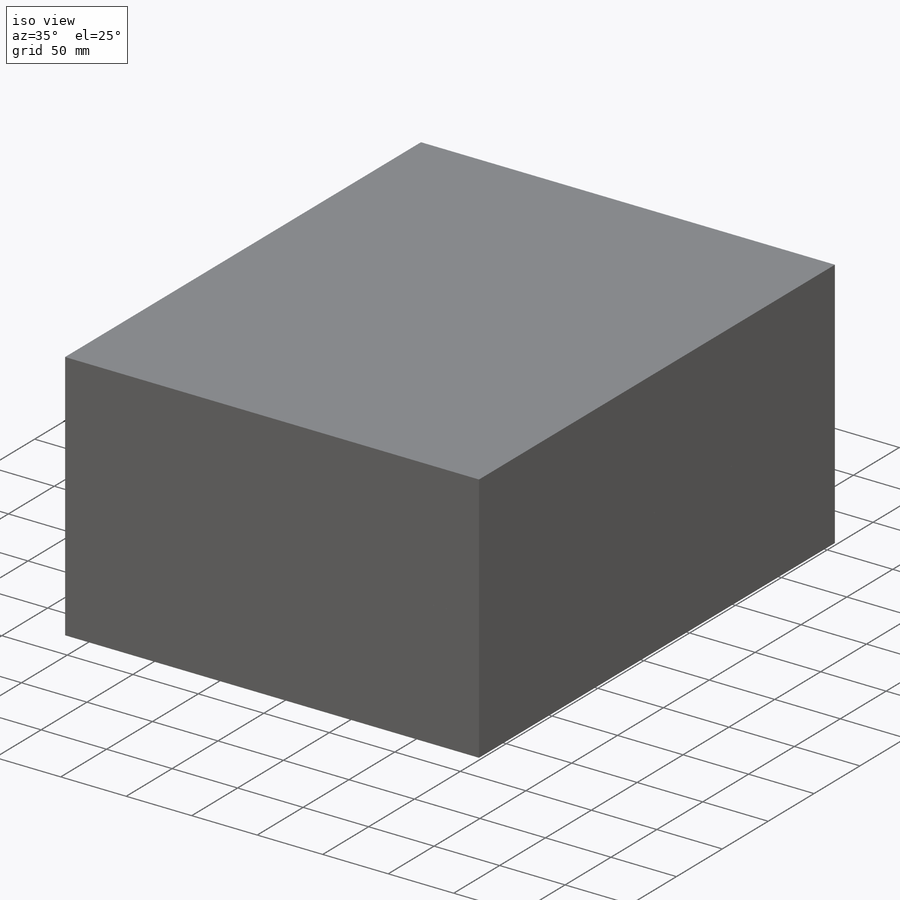
[diagram: iso view]
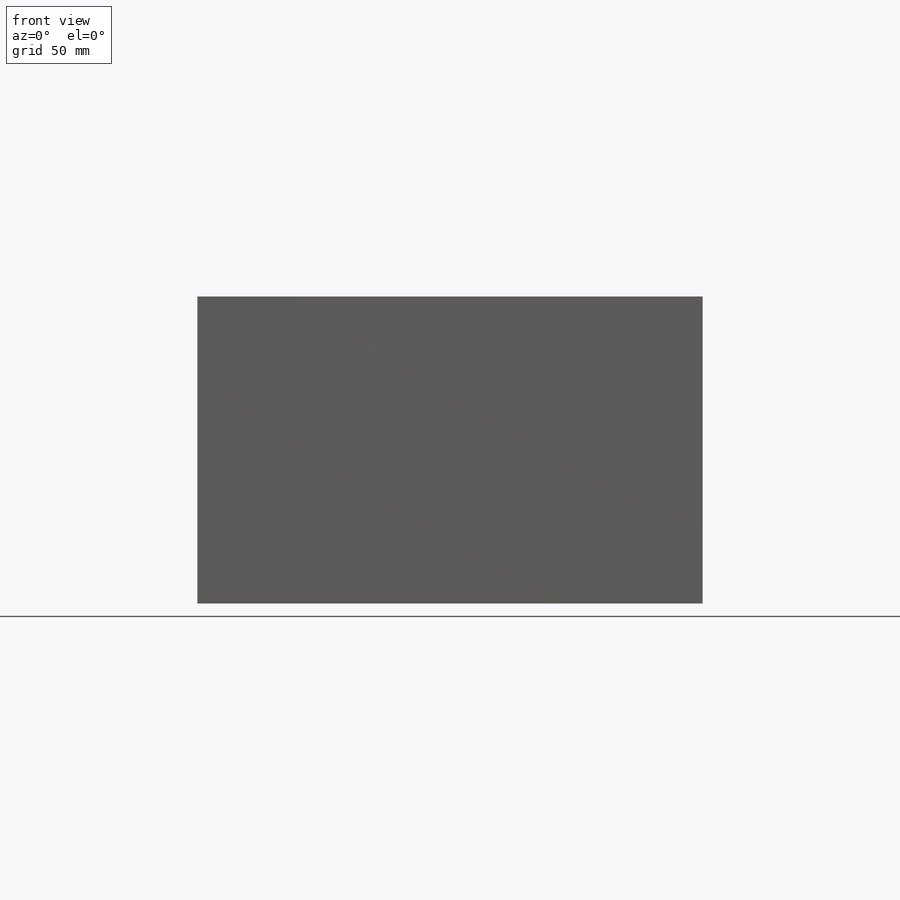
[diagram: front view]
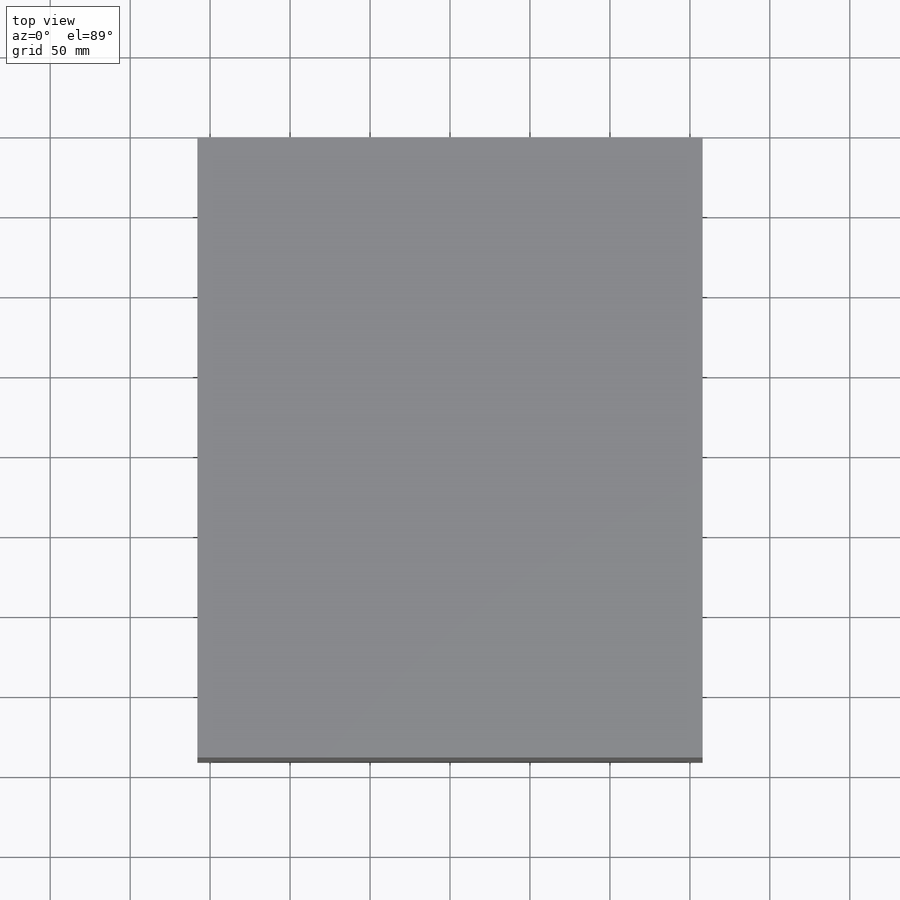
[diagram: top view]
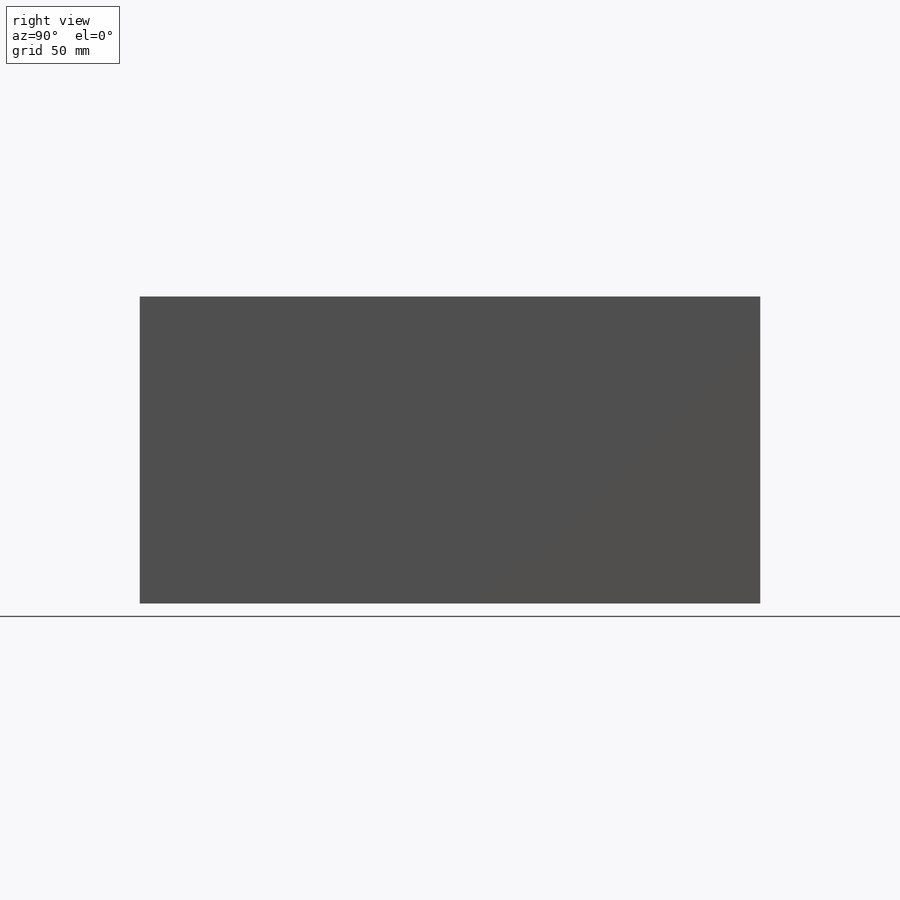
[diagram: right view]
SOLIDWORKS PART (.sldprt)
format: sldprt  version: not decoded by parser v0  size: 590,848 bytes
history: native  units: mm
features: plane x5, sketch x4, extrude x3, mirror x3, material x1, fillet x1, shell x1 + 2 further entries (+11 scaffold rows collapsed)
feature tree (31):
  scaffold x11  (default folders/planes/origin — collapsed)
  material  "Material <não especificado>"
  "Corpos de superfície de núcleo"
  "Corpos de superfície de partição"
  plane  "Frontal"
  plane  "Superior"
  plane  "Direito"
  sketch  "Esboço1"  dims[D3=12.0mm D1=175.0mm D2=124.0mm]
  extrude  "Extrusão1"  Depth=4.5mm
  sketch  "Esboço2"  dims[c1.D1=100.0mm c2.D1=0.0deg c3.D1=3.5mm]
  extrude  "Extrusão2"  Depth=75mm
  fillet  "Filete4"  Radius=10mm
  shell  "Casca1"  Thickness=2.5mm
  plane  "Plano4"  Offset=97mm
  sketch  "Esboço5"  dims[D1=4.0mm D2=39.5mm]
  extrude  "Extrusão3"  [1 undecoded]
  mirror  "Espelhar12"
  mirror  "Inclinação8"
  mirror  "Inclinação9"
  plane  "Plano5"  Offset=0mm
  sketch  "Esboço6"  dims[c1.D1=316.0mm c1.D2=388.0mm c1.D3=97.0mm c1.D4=158.0mm c2.D1=96.0mm c2.D2=96.0mm c2.D3=3.0deg]
decode coverage: 8 of 12 modeling features carry decoded parameters; 2 rows unclassified (native names shown)
note: 1 parameter value undecoded
note: suppression state not decoded; provenance and decode notes live in map.json
